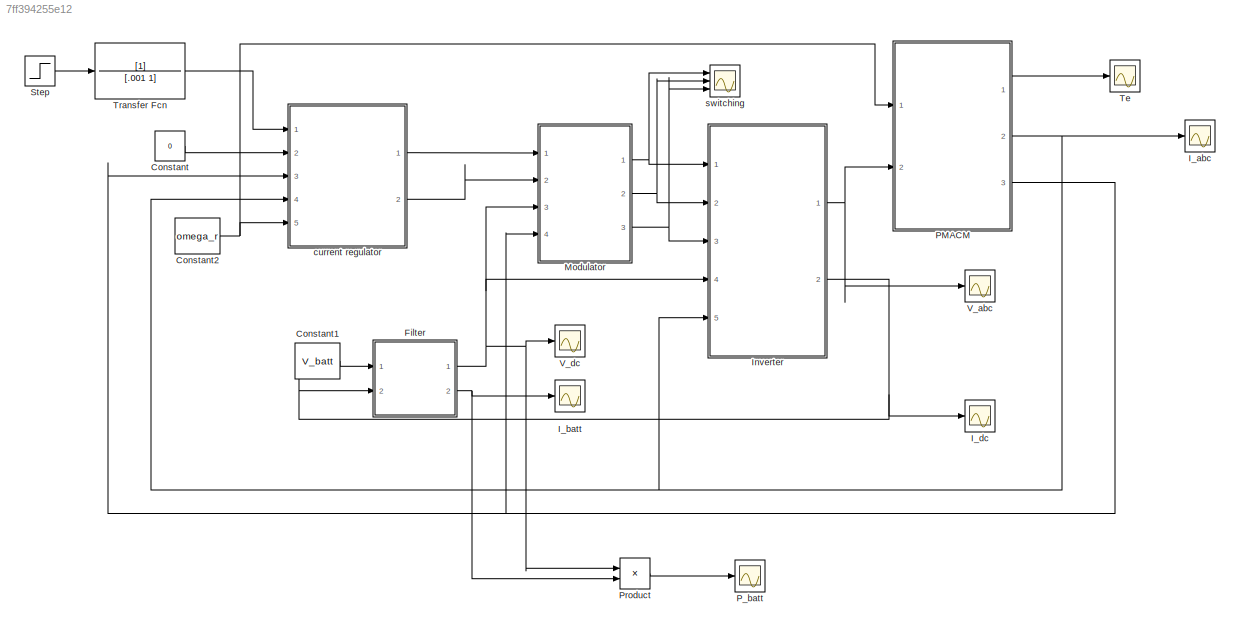
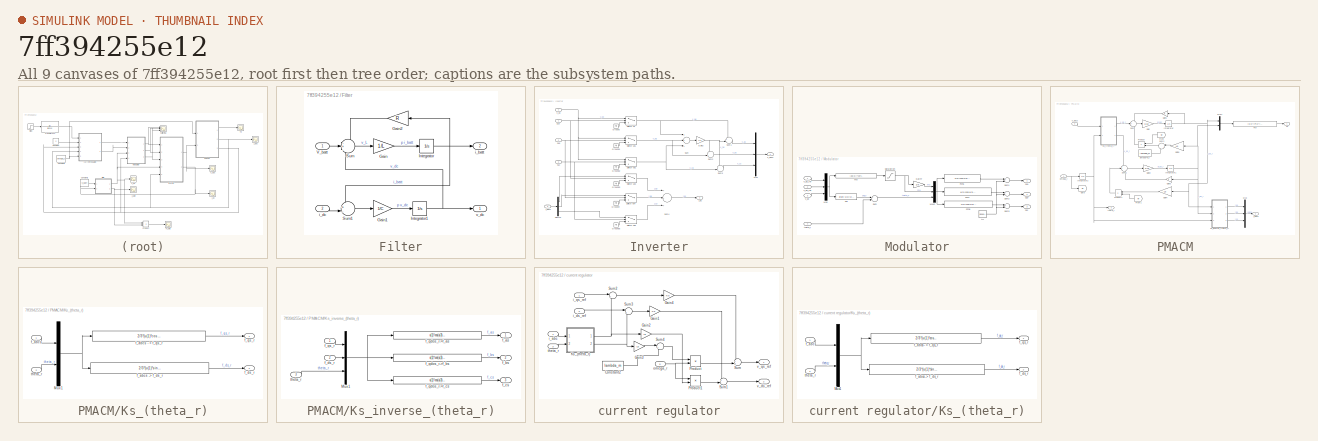
[diagram: thumbnail index - all 9 canvases of the model, root first then tree order]
MODEL slx_7ff394255e12
KIND model
CONFIG AbsTol = auto
CONFIG EnableMultiTasking = off
CONFIG FixedStep = auto
CONFIG MaxStep = 1e-5
CONFIG MinStep = 1e-20
CONFIG RelTol = 1e-3
CONFIG SampleTimeConstraint = Unconstrained
CONFIG Solver = ode23tb
CONFIG SolverName = ode23tb
CONFIG StartTime = 0.0
CONFIG StopTime = .1
BLOCK [Constant] Constant
  Value = 0
BLOCK [Constant] Constant1
  Value = V_batt
BLOCK [Constant] Constant2
  Value = omega_r
BLOCK [SubSystem] Filter
  AncestorBlock = Project3_Naz/Filter
  Ports = [2, 2]
  RequestExecContextInheritance = off
  Variant = off
BLOCK [Gain] Filter/Gain
  Gain = 1/L
  OutDataTypeStr = Inherit: Inherit via internal rule
  ParamDataTypeStr = Inherit: Inherit via internal rule
  SaturateOnIntegerOverflow = off
BLOCK [Gain] Filter/Gain1
  Gain = 1/C
  OutDataTypeStr = Inherit: Inherit via internal rule
  ParamDataTypeStr = Inherit: Inherit via internal rule
  SaturateOnIntegerOverflow = off
BLOCK [Gain] Filter/Gain2
  Gain = R
  OutDataTypeStr = Inherit: Inherit via internal rule
  ParamDataTypeStr = Inherit: Inherit via internal rule
  SaturateOnIntegerOverflow = off
BLOCK [Integrator] Filter/Integrator
  Ports = [1, 1]
BLOCK [Integrator] Filter/Integrator1
  InitialCondition = V_batt
  Ports = [1, 1]
BLOCK [Sum] Filter/Sum
  IconShape = round
  InputSameDT = off
  Inputs = -+-
  OutDataTypeStr = Inherit: Inherit via internal rule
  Ports = [3, 1]
  SaturateOnIntegerOverflow = off
BLOCK [Sum] Filter/Sum1
  IconShape = round
  InputSameDT = off
  Inputs = +-|
  OutDataTypeStr = Inherit: Inherit via internal rule
  Ports = [2, 1]
  SaturateOnIntegerOverflow = off
BLOCK [Inport] Filter/V_batt
  IconDisplay = Port number
BLOCK [Outport] Filter/i_batt
  IconDisplay = Port number
  Port = 2
BLOCK [Inport] Filter/i_dc
  IconDisplay = Port number
  Port = 2
BLOCK [Outport] Filter/v_dc
  IconDisplay = Port number
BLOCK [Scope] I_abc
  NumInputPorts = 1
  Ports = [1]
  ScopeSpecificationString = Simulink.scopes.TimeScopeBlockCfg('CurrentConfiguration', extmgr.ConfigurationSet(extmgr.Configuration('Core','General UI',true,'FigureColor',[1 1 1]),extmgr.Configuration('Core','Source UI',true),extmgr.Configuration('Sources','WiredSimulink',true,'DataLoggingVariableName','ScopeData5'),extmgr.Configuration('Visuals','Time Domain',true,'SerializedDisplays',{struct('MinYLimReal','-261.08649','MaxY...<+1635ch>
BLOCK [Scope] I_batt
  NumInputPorts = 1
  Ports = [1]
  ScopeSpecificationString = Simulink.scopes.TimeScopeBlockCfg('CurrentConfiguration', extmgr.ConfigurationSet(extmgr.Configuration('Core','General UI',true,'FigureColor',[1 1 1]),extmgr.Configuration('Core','Source UI',true),extmgr.Configuration('Sources','WiredSimulink',true,'DataLoggingVariableName','ScopeData1'),extmgr.Configuration('Visuals','Time Domain',true,'SerializedDisplays',{struct('MinYLimReal','-111.27639','MaxY...<+1588ch>
BLOCK [Scope] I_dc
  NumInputPorts = 1
  Ports = [1]
  ScopeSpecificationString = Simulink.scopes.TimeScopeBlockCfg('CurrentConfiguration', extmgr.ConfigurationSet(extmgr.Configuration('Core','General UI',true,'FigureColor',[1 1 1]),extmgr.Configuration('Core','Source UI',true),extmgr.Configuration('Sources','WiredSimulink',true,'DataLoggingVariableName','ScopeData3'),extmgr.Configuration('Visuals','Time Domain',true,'SerializedDisplays',{struct('MinYLimReal','-260.94848','MaxY...<+1554ch>
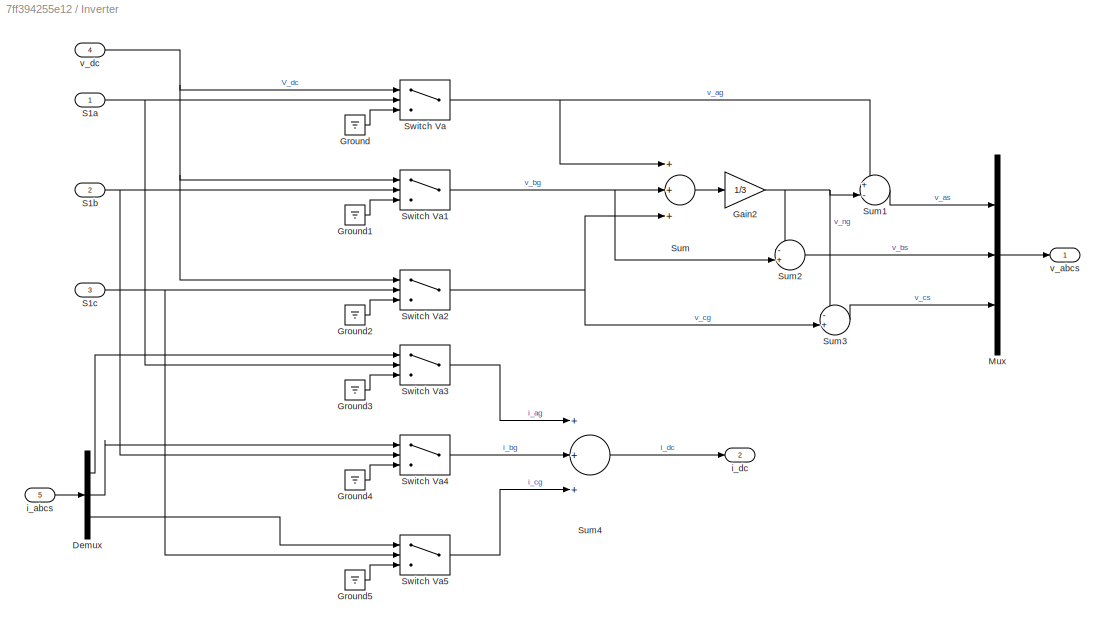
BLOCK [SubSystem] Inverter
  AncestorBlock = Project3_Naz/Inverter
  Ports = [5, 2]
  RequestExecContextInheritance = off
  Variant = off
BLOCK [Demux] Inverter/Demux
  DisplayOption = bar
  Outputs = 3
  Ports = [1, 3]
BLOCK [Gain] Inverter/Gain2
  Gain = 1/3
  OutDataTypeStr = Inherit: Inherit via internal rule
  ParamDataTypeStr = Inherit: Inherit via internal rule
  SaturateOnIntegerOverflow = off
BLOCK [Ground] Inverter/Ground
BLOCK [Ground] Inverter/Ground1
BLOCK [Ground] Inverter/Ground2
BLOCK [Ground] Inverter/Ground3
BLOCK [Ground] Inverter/Ground4
BLOCK [Ground] Inverter/Ground5
BLOCK [Mux] Inverter/Mux
  DisplayOption = bar
  Inputs = 3
  Ports = [3, 1]
BLOCK [Inport] Inverter/S1a
  IconDisplay = Port number
BLOCK [Inport] Inverter/S1b
  IconDisplay = Port number
  Port = 2
BLOCK [Inport] Inverter/S1c
  IconDisplay = Port number
  Port = 3
BLOCK [Sum] Inverter/Sum
  InputSameDT = off
  Inputs = +++
  OutDataTypeStr = Inherit: Inherit via internal rule
  Ports = [3, 1]
  SaturateOnIntegerOverflow = off
BLOCK [Sum] Inverter/Sum1
  IconShape = round
  InputSameDT = off
  Inputs = +-|
  OutDataTypeStr = Inherit: Inherit via internal rule
  Ports = [2, 1]
  SaturateOnIntegerOverflow = off
BLOCK [Sum] Inverter/Sum2
  IconShape = round
  InputSameDT = off
  Inputs = -+|
  OutDataTypeStr = Inherit: Inherit via internal rule
  Ports = [2, 1]
  SaturateOnIntegerOverflow = off
BLOCK [Sum] Inverter/Sum3
  IconShape = round
  InputSameDT = off
  Inputs = -+|
  OutDataTypeStr = Inherit: Inherit via internal rule
  Ports = [2, 1]
  SaturateOnIntegerOverflow = off
BLOCK [Sum] Inverter/Sum4
  InputSameDT = off
  Inputs = +++
  OutDataTypeStr = Inherit: Inherit via internal rule
  Ports = [3, 1]
  SaturateOnIntegerOverflow = off
BLOCK [Switch] Inverter/Switch Va
  Criteria = u2 > Threshold
  InputSameDT = off
  SaturateOnIntegerOverflow = off
BLOCK [Switch] Inverter/Switch Va1
  Criteria = u2 > Threshold
  InputSameDT = off
  SaturateOnIntegerOverflow = off
BLOCK [Switch] Inverter/Switch Va2
  Criteria = u2 > Threshold
  InputSameDT = off
  SaturateOnIntegerOverflow = off
BLOCK [Switch] Inverter/Switch Va3
  Criteria = u2 > Threshold
  InputSameDT = off
  SaturateOnIntegerOverflow = off
BLOCK [Switch] Inverter/Switch Va4
  Criteria = u2 > Threshold
  InputSameDT = off
  SaturateOnIntegerOverflow = off
BLOCK [Switch] Inverter/Switch Va5
  Criteria = u2 > Threshold
  InputSameDT = off
  SaturateOnIntegerOverflow = off
BLOCK [Inport] Inverter/i_abcs
  IconDisplay = Port number
  Port = 5
BLOCK [Outport] Inverter/i_dc
  IconDisplay = Port number
  Port = 2
BLOCK [Outport] Inverter/v_abcs
  IconDisplay = Port number
BLOCK [Inport] Inverter/v_dc
  IconDisplay = Port number
  Port = 4
BLOCK [SubSystem] Modulator
  AncestorBlock = Project3_Naz/Modulator
  Ports = [4, 3]
  RequestExecContextInheritance = off
  Variant = off
BLOCK [Fcn] Modulator/Fcn6
  Expr = u(2)*cos(u(3))-u(1)*cos(3*u(3))
BLOCK [Fcn] Modulator/Fcn7
  Expr = u(2)*cos(u(3)-2*pi/3)-u(1)*cos(3*u(3))
BLOCK [Fcn] Modulator/Fcn8
  Expr = u(2)*cos(u(3)+2*pi/3)-u(1)*cos(3*u(3))
BLOCK [Gain] Modulator/Gain7
  Gain = 1/6
  OutDataTypeStr = Inherit: Inherit via internal rule
  ParamDataTypeStr = Inherit: Inherit via internal rule
  SaturateOnIntegerOverflow = off
BLOCK [Mux] Modulator/Mux
  DisplayOption = bar
  Inputs = 3
  Ports = [3, 1]
BLOCK [Mux] Modulator/Mux2
  DisplayOption = bar
  Inputs = 3
  Ports = [3, 1]
BLOCK [Outport] Modulator/S1a
  IconDisplay = Port number
BLOCK [Outport] Modulator/S1b
  IconDisplay = Port number
  Port = 2
BLOCK [Outport] Modulator/S1c
  IconDisplay = Port number
  Port = 3
BLOCK [Saturate] Modulator/Saturation
  InputPortMap = u0
  LowerLimit = 0
  Ports = [1, 1]
  UpperLimit = 2/sqrt(3)
BLOCK [Sum] Modulator/Sum
  InputSameDT = off
  OutDataTypeStr = Inherit: Inherit via internal rule
  Ports = [2, 1]
  SaturateOnIntegerOverflow = off
BLOCK [Sum] Modulator/Sum1
  InputSameDT = off
  Inputs = +-
  OutDataTypeStr = Inherit: Inherit via internal rule
  Ports = [2, 1]
  SaturateOnIntegerOverflow = off
BLOCK [Sum] Modulator/Sum2
  InputSameDT = off
  Inputs = +-
  OutDataTypeStr = Inherit: Inherit via internal rule
  Ports = [2, 1]
  SaturateOnIntegerOverflow = off
BLOCK [Sum] Modulator/Sum3
  InputSameDT = off
  Inputs = +-
  OutDataTypeStr = Inherit: Inherit via internal rule
  Ports = [2, 1]
  SaturateOnIntegerOverflow = off
BLOCK [Fcn] Modulator/ma
  Expr = (2/u(3))*sqrt(u(1)^2+u(2)^2)
BLOCK [Fcn] Modulator/phi
  Expr = atan(-u(2)/u(1))
BLOCK [Inport] Modulator/theta_r
  IconDisplay = Port number
  Port = 4
BLOCK [Reference] Modulator/tri  REF=simulink/Sources/Repeating
Sequence
  Ports = [0, 1]
  SourceBlock = simulink/Sources/Repeating\nSequence
  SourceProductBaseCode = SL
  SourceProductName = Simulink
  SourceType = Repeating table
BLOCK [Inport] Modulator/v_dc
  IconDisplay = Port number
  Port = 3
BLOCK [Inport] Modulator/v_ds_ref
  IconDisplay = Port number
  Port = 2
BLOCK [Inport] Modulator/v_qs_ref
  IconDisplay = Port number
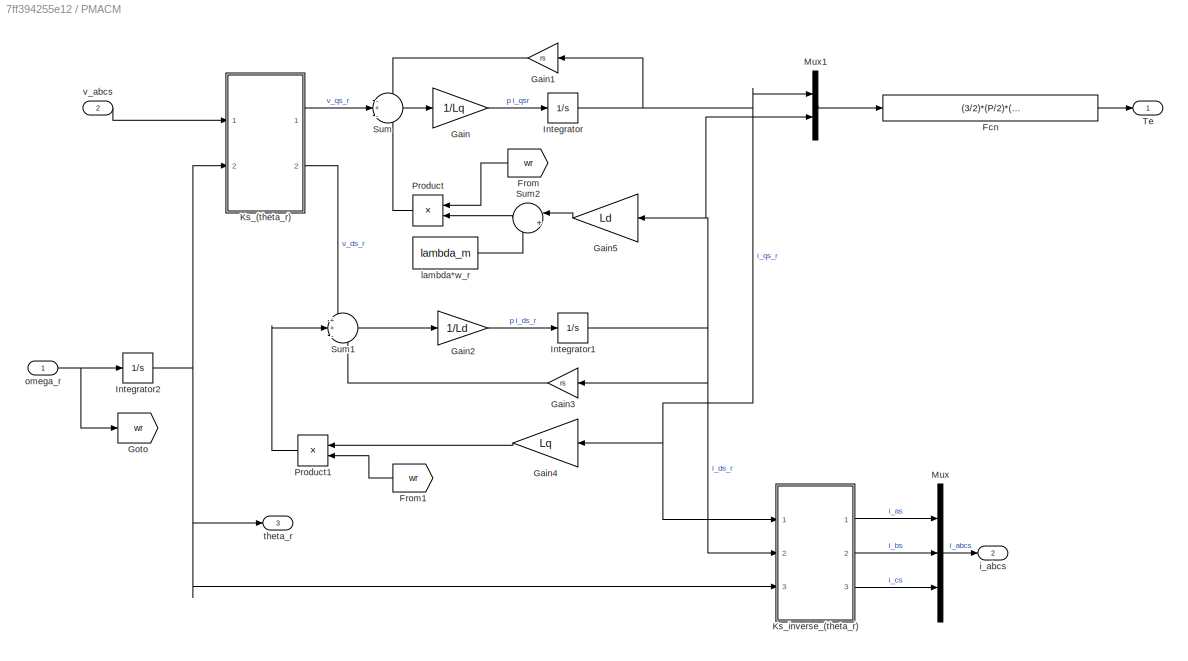
BLOCK [SubSystem] PMACM
  AncestorBlock = Project3_Naz/PMACM
  Ports = [2, 3]
  RequestExecContextInheritance = off
  Variant = off
BLOCK [Fcn] PMACM/Fcn
  Expr = (3/2)*(P/2)*(lambda_m*u(1) + (Ld-Lq)*u(1)*u(2))
BLOCK [From] PMACM/From
  GotoTag = wr
BLOCK [From] PMACM/From1
  GotoTag = wr
BLOCK [Gain] PMACM/Gain
  Gain = 1/Lq
  OutDataTypeStr = Inherit: Inherit via internal rule
  ParamDataTypeStr = Inherit: Inherit via internal rule
  SaturateOnIntegerOverflow = off
BLOCK [Gain] PMACM/Gain1
  Gain = rs
  OutDataTypeStr = Inherit: Inherit via internal rule
  ParamDataTypeStr = Inherit: Inherit via internal rule
  SaturateOnIntegerOverflow = off
BLOCK [Gain] PMACM/Gain2
  Gain = 1/Ld
  OutDataTypeStr = Inherit: Inherit via internal rule
  ParamDataTypeStr = Inherit: Inherit via internal rule
  SaturateOnIntegerOverflow = off
BLOCK [Gain] PMACM/Gain3
  Gain = rs
  OutDataTypeStr = Inherit: Inherit via internal rule
  ParamDataTypeStr = Inherit: Inherit via internal rule
  SaturateOnIntegerOverflow = off
BLOCK [Gain] PMACM/Gain4
  Gain = Lq
  OutDataTypeStr = Inherit: Inherit via internal rule
  ParamDataTypeStr = Inherit: Inherit via internal rule
  SaturateOnIntegerOverflow = off
BLOCK [Gain] PMACM/Gain5
  Gain = Ld
  OutDataTypeStr = Inherit: Inherit via internal rule
  ParamDataTypeStr = Inherit: Inherit via internal rule
  SaturateOnIntegerOverflow = off
BLOCK [Goto] PMACM/Goto
  GotoTag = wr
BLOCK [Integrator] PMACM/Integrator
  Ports = [1, 1]
BLOCK [Integrator] PMACM/Integrator1
  Ports = [1, 1]
BLOCK [Integrator] PMACM/Integrator2
  Ports = [1, 1]
BLOCK [SubSystem] PMACM/Ks_(theta_r)
  Ports = [2, 2]
  RequestExecContextInheritance = off
  Variant = off
BLOCK [Mux] PMACM/Ks_(theta_r)/Mux1
  DisplayOption = bar
  Inputs = 2
  Ports = [2, 1]
BLOCK [Inport] PMACM/Ks_(theta_r)/f_abcs
  IconDisplay = Port number
BLOCK [Fcn] PMACM/Ks_(theta_r)/f_abcs - > f_qs_r
  Expr = 2/3*(u(1)*cos(u(4))+u(2)*cos(u(4)-2*pi/3)+u(3)*cos(u(4)+2*pi/3))
BLOCK [Fcn] PMACM/Ks_(theta_r)/f_abcs -> f_ds_r
  Expr = 2/3*(u(1)*sin(u(4))+u(2)*sin(u(4)-2*pi/3)+u(3)*sin(u(4)+2*pi/3))
BLOCK [Outport] PMACM/Ks_(theta_r)/f_ds_r
  IconDisplay = Port number
  Port = 2
BLOCK [Outport] PMACM/Ks_(theta_r)/f_qs_r
  IconDisplay = Port number
BLOCK [Inport] PMACM/Ks_(theta_r)/theta_r
  IconDisplay = Port number
  Port = 2
BLOCK [SubSystem] PMACM/Ks_inverse_(theta_r)
  Ports = [3, 3]
  RequestExecContextInheritance = off
  Variant = off
BLOCK [Mux] PMACM/Ks_inverse_(theta_r)/Mux1
  DisplayOption = bar
  Inputs = 3
  Ports = [3, 1]
BLOCK [Outport] PMACM/Ks_inverse_(theta_r)/f_as
  IconDisplay = Port number
BLOCK [Outport] PMACM/Ks_inverse_(theta_r)/f_bs
  IconDisplay = Port number
  Port = 2
BLOCK [Outport] PMACM/Ks_inverse_(theta_r)/f_cs
  IconDisplay = Port number
  Port = 3
BLOCK [Inport] PMACM/Ks_inverse_(theta_r)/f_ds_r
  IconDisplay = Port number
  Port = 2
BLOCK [Fcn] PMACM/Ks_inverse_(theta_r)/f_qdos_r->f_as
  Expr = u(1)*cos(u(3))+u(2)*sin(u(3))
BLOCK [Fcn] PMACM/Ks_inverse_(theta_r)/f_qdos_r->f_bs
  Expr = u(1)*cos(u(3)-2*pi/3)+u(2)*sin(u(3)-2*pi/3)
BLOCK [Fcn] PMACM/Ks_inverse_(theta_r)/f_qdos_r->f_cs
  Expr = u(1)*cos(u(3)+2*pi/3)+u(2)*sin(u(3)+2*pi/3)
BLOCK [Inport] PMACM/Ks_inverse_(theta_r)/f_qs_r
  IconDisplay = Port number
BLOCK [Inport] PMACM/Ks_inverse_(theta_r)/theta_r
  IconDisplay = Port number
  Port = 3
BLOCK [Mux] PMACM/Mux
  DisplayOption = bar
  Inputs = 3
  Ports = [3, 1]
BLOCK [Mux] PMACM/Mux1
  DisplayOption = bar
  Inputs = 2
  Ports = [2, 1]
BLOCK [Product] PMACM/Product
  InputSameDT = off
  OutDataTypeStr = Inherit: Inherit via internal rule
  Ports = [2, 1]
  RndMeth = Floor
  SaturateOnIntegerOverflow = off
BLOCK [Product] PMACM/Product1
  InputSameDT = off
  OutDataTypeStr = Inherit: Inherit via internal rule
  Ports = [2, 1]
  RndMeth = Floor
  SaturateOnIntegerOverflow = off
BLOCK [Sum] PMACM/Sum
  IconShape = round
  InputSameDT = off
  Inputs = -+-
  OutDataTypeStr = Inherit: Inherit via internal rule
  Ports = [3, 1]
  SaturateOnIntegerOverflow = off
BLOCK [Sum] PMACM/Sum1
  IconShape = round
  InputSameDT = off
  Inputs = ++-
  OutDataTypeStr = Inherit: Inherit via internal rule
  Ports = [3, 1]
  SaturateOnIntegerOverflow = off
BLOCK [Sum] PMACM/Sum2
  IconShape = round
  InputSameDT = off
  Inputs = |++
  OutDataTypeStr = Inherit: Inherit via internal rule
  Ports = [2, 1]
  SaturateOnIntegerOverflow = off
BLOCK [Outport] PMACM/Te
  IconDisplay = Port number
BLOCK [Outport] PMACM/i_abcs
  IconDisplay = Port number
  Port = 2
BLOCK [Constant] PMACM/lambda*w_r
  Value = lambda_m
BLOCK [Inport] PMACM/omega_r
  IconDisplay = Port number
BLOCK [Outport] PMACM/theta_r
  IconDisplay = Port number
  Port = 3
BLOCK [Inport] PMACM/v_abcs
  IconDisplay = Port number
  Port = 2
BLOCK [Scope] P_batt
  NumInputPorts = 1
  Ports = [1]
  ScopeSpecificationString = Simulink.scopes.TimeScopeBlockCfg('CurrentConfiguration', extmgr.ConfigurationSet(extmgr.Configuration('Core','General UI',true,'FigureColor',[1 1 1]),extmgr.Configuration('Core','Source UI',true),extmgr.Configuration('Sources','WiredSimulink',true,'DataLoggingVariableName','ScopeData1'),extmgr.Configuration('Visuals','Time Domain',true,'SerializedDisplays',{struct('MinYLimReal','-39035.62404','Ma...<+1598ch>
BLOCK [Product] Product
  InputSameDT = off
  OutDataTypeStr = Inherit: Inherit via internal rule
  Ports = [2, 1]
  RndMeth = Floor
  SaturateOnIntegerOverflow = off
BLOCK [Step] Step
  After = -I_qs_star
  Before = I_qs_star
  SampleTime = 0
  Time = .05
BLOCK [Scope] Te
  NumInputPorts = 1
  Ports = [1]
  ScopeSpecificationString = Simulink.scopes.TimeScopeBlockCfg('CurrentConfiguration', extmgr.ConfigurationSet(extmgr.Configuration('Core','General UI',true,'FigureColor',[1 1 1]),extmgr.Configuration('Core','Source UI',true),extmgr.Configuration('Sources','WiredSimulink',true),extmgr.Configuration('Visuals','Time Domain',true,'SerializedDisplays',{struct('MinYLimReal','-125.51501','MaxYLimReal','125.52235','YLabelReal','','M...<+1589ch>
BLOCK [TransferFcn] Transfer Fcn
  Denominator = [.001 1]
BLOCK [Scope] V_abc
  NumInputPorts = 1
  Ports = [1]
  ScopeSpecificationString = Simulink.scopes.TimeScopeBlockCfg('CurrentConfiguration', extmgr.ConfigurationSet(extmgr.Configuration('Core','General UI',true,'FigureColor',[1 1 1]),extmgr.Configuration('Core','Source UI',true),extmgr.Configuration('Sources','WiredSimulink',true,'DataLoggingVariableName','ScopeData4'),extmgr.Configuration('Visuals','Time Domain',true,'SerializedDisplays',{struct('MinYLimReal','-293.50835','MaxY...<+1631ch>
BLOCK [Scope] V_dc
  NumInputPorts = 1
  Ports = [1]
  ScopeSpecificationString = Simulink.scopes.TimeScopeBlockCfg('CurrentConfiguration', extmgr.ConfigurationSet(extmgr.Configuration('Core','General UI',true,'FigureColor',[1 1 1]),extmgr.Configuration('Core','Source UI',true),extmgr.Configuration('Sources','WiredSimulink',true,'DataLoggingVariableName','ScopeData2'),extmgr.Configuration('Visuals','Time Domain',true,'SerializedDisplays',{struct('MinYLimReal','347.20576','MaxYL...<+1552ch>
BLOCK [SubSystem] current regulator
  AncestorBlock = Project3_Naz/current regulator
  Ports = [5, 2]
  RequestExecContextInheritance = off
  Variant = off
BLOCK [Constant] current regulator/Constant2
  Value = lambda_m
BLOCK [Gain] current regulator/Gain1
  Gain = Kd
  OutDataTypeStr = Inherit: Inherit via internal rule
  ParamDataTypeStr = Inherit: Inherit via internal rule
  SaturateOnIntegerOverflow = off
BLOCK [Gain] current regulator/Gain2
  Gain = Lq
  OutDataTypeStr = Inherit: Inherit via internal rule
  ParamDataTypeStr = Inherit: Inherit via internal rule
  SaturateOnIntegerOverflow = off
BLOCK [Gain] current regulator/Gain3
  Gain = Ld
  OutDataTypeStr = Inherit: Inherit via internal rule
  ParamDataTypeStr = Inherit: Inherit via internal rule
  SaturateOnIntegerOverflow = off
BLOCK [Gain] current regulator/Gain4
  Gain = Kq
  OutDataTypeStr = Inherit: Inherit via internal rule
  ParamDataTypeStr = Inherit: Inherit via internal rule
  SaturateOnIntegerOverflow = off
BLOCK [SubSystem] current regulator/Ks_(theta_r)
  Ports = [2, 2]
  RequestExecContextInheritance = off
  Variant = off
BLOCK [Mux] current regulator/Ks_(theta_r)/Mux1
  DisplayOption = bar
  Inputs = 2
  Ports = [2, 1]
BLOCK [Inport] current regulator/Ks_(theta_r)/f_abc
  IconDisplay = Port number
BLOCK [Fcn] current regulator/Ks_(theta_r)/f_abcs - > f_qs_r
  Expr = 2/3*(u(1)*cos(u(4))+u(2)*cos(u(4)-2*pi/3)+u(3)*cos(u(4)+2*pi/3))
BLOCK [Fcn] current regulator/Ks_(theta_r)/f_abcs -> f_ds_r
  Expr = 2/3*(u(1)*sin(u(4))+u(2)*sin(u(4)-2*pi/3)+u(3)*sin(u(4)+2*pi/3))
BLOCK [Outport] current regulator/Ks_(theta_r)/f_ds_r
  IconDisplay = Port number
  Port = 2
BLOCK [Outport] current regulator/Ks_(theta_r)/f_qs_r
  IconDisplay = Port number
BLOCK [Inport] current regulator/Ks_(theta_r)/theta_r
  IconDisplay = Port number
  Port = 2
BLOCK [Product] current regulator/Product
  InputSameDT = off
  OutDataTypeStr = Inherit: Inherit via internal rule
  Ports = [2, 1]
  RndMeth = Floor
  SaturateOnIntegerOverflow = off
BLOCK [Product] current regulator/Product1
  InputSameDT = off
  OutDataTypeStr = Inherit: Inherit via internal rule
  Ports = [2, 1]
  RndMeth = Floor
  SaturateOnIntegerOverflow = off
BLOCK [Sum] current regulator/Sum
  IconShape = round
  InputSameDT = off
  Inputs = ++|
  OutDataTypeStr = Inherit: Inherit via internal rule
  Ports = [2, 1]
  SaturateOnIntegerOverflow = off
BLOCK [Sum] current regulator/Sum1
  IconShape = round
  InputSameDT = off
  Inputs = +-|
  OutDataTypeStr = Inherit: Inherit via internal rule
  Ports = [2, 1]
  SaturateOnIntegerOverflow = off
BLOCK [Sum] current regulator/Sum2
  IconShape = round
  InputSameDT = off
  Inputs = |+-
  OutDataTypeStr = Inherit: Inherit via internal rule
  Ports = [2, 1]
  SaturateOnIntegerOverflow = off
BLOCK [Sum] current regulator/Sum3
  IconShape = round
  InputSameDT = off
  Inputs = |+-
  OutDataTypeStr = Inherit: Inherit via internal rule
  Ports = [2, 1]
  SaturateOnIntegerOverflow = off
BLOCK [Sum] current regulator/Sum4
  IconShape = round
  InputSameDT = off
  Inputs = |++
  OutDataTypeStr = Inherit: Inherit via internal rule
  Ports = [2, 1]
  SaturateOnIntegerOverflow = off
BLOCK [Inport] current regulator/i_abc
  IconDisplay = Port number
  Port = 4
BLOCK [Inport] current regulator/i_ds_ref
  IconDisplay = Port number
  Port = 2
BLOCK [Inport] current regulator/i_qs_ref
  IconDisplay = Port number
BLOCK [Inport] current regulator/omega_r
  IconDisplay = Port number
  Port = 5
BLOCK [Inport] current regulator/theta_r
  IconDisplay = Port number
  Port = 3
BLOCK [Outport] current regulator/v_ds_ref
  IconDisplay = Port number
  Port = 2
BLOCK [Outport] current regulator/v_qs_ref
  IconDisplay = Port number
BLOCK [Scope] switching
  NumInputPorts = 3
  Ports = [3]
  ScopeSpecificationString = Simulink.scopes.TimeScopeBlockCfg('CurrentConfiguration', extmgr.ConfigurationSet(extmgr.Configuration('Core','General UI',true,'FigureColor',[1 1 1]),extmgr.Configuration('Core','Source UI',true),extmgr.Configuration('Sources','WiredSimulink',true,'DataLoggingVariableName','ScopeData1'),extmgr.Configuration('Visuals','Time Domain',true,'SerializedDisplays',{struct('MinYLimReal','-2.03002','MaxYLi...<+1947ch>
LINE Constant1:1 -> Filter:1
NET Constant2:1 -> PMACM:1, current regulator:5
LINE Constant:1 -> current regulator:2
NET Filter:1 -> Inverter:4, Modulator:3, Product:1, V_dc:1
NET Filter:2 -> I_batt:1, Product:2
NET Inverter:1 -> PMACM:2, V_abc:1
NET Inverter:2 -> Filter:2, I_dc:1
NET Modulator:1 -> Inverter:1, switching:1
NET Modulator:2 -> Inverter:2, switching:2
NET Modulator:3 -> Inverter:3, switching:3
LINE PMACM:1 -> Te:1
NET PMACM:2 -> I_abc:1, Inverter:5, current regulator:4
NET PMACM:3 -> Modulator:4, current regulator:3
LINE Product:1 -> P_batt:1
LINE Step:1 -> Transfer Fcn:1
LINE Transfer Fcn:1 -> current regulator:1
LINE current regulator:1 -> Modulator:1
LINE current regulator:2 -> Modulator:2
note: NET lines group one-source signal fan-out (src -> all destinations, sorted); 1:1 wires keep LINE
